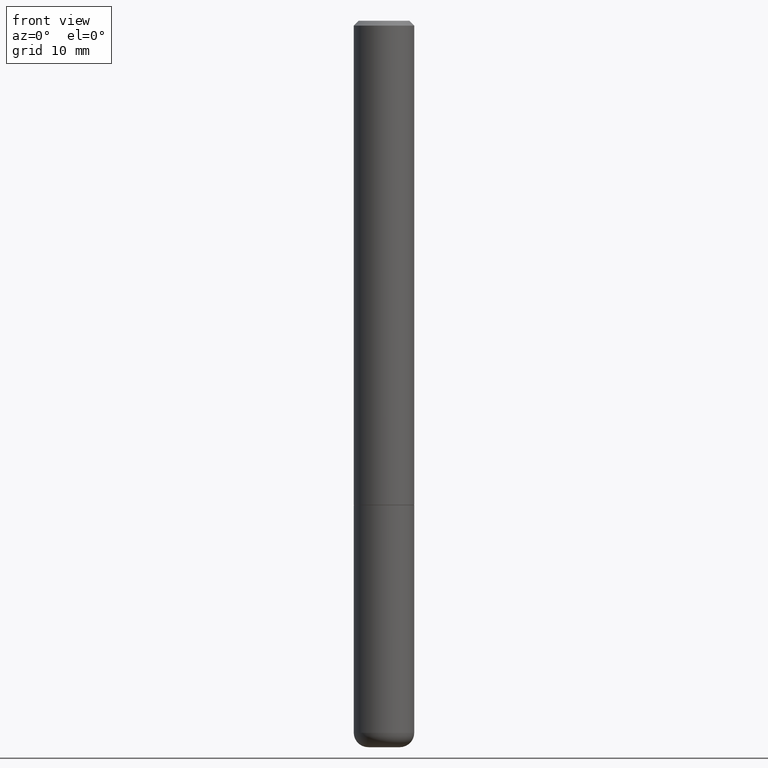
[diagram: clean part render]
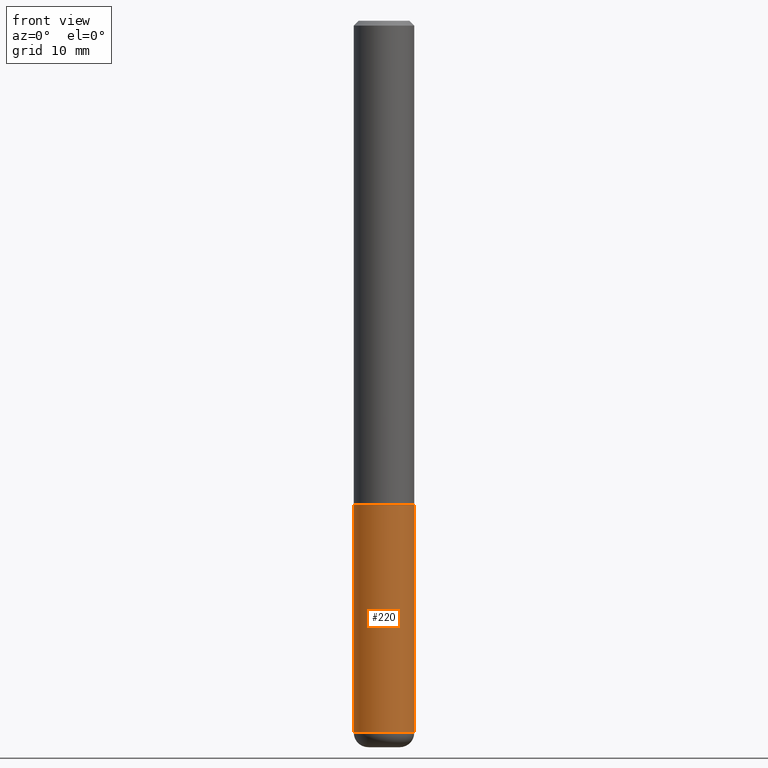
[diagram: same view with one face highlighted and labeled with its STEP entity id]
A machine part, front view. The second image highlights one B-rep face of the part: STEP entity #220.
In plain terms, the highlighted cylindrical surface (edge-blend (fillet) strip) has radius 3.175 mm, axis along (-0, 0, 1).
Its self-contained STEP definition (entity closure, byte-faithful):
#7 = DIRECTION ( 'NONE',  ( -2.445468806185136877E-29, 3.491481338843145188E-15, 1.000000000000000000 ) ) ;
#8 = CARTESIAN_POINT ( 'NONE',  ( -0.1250000000000000278, 8.881784197001254296E-16, -6.148668862818634329E-30 ) ) ;
#10 = VECTOR ( 'NONE', #284, 39.37007874015748143 ) ;
#15 = VERTEX_POINT ( 'NONE', #469 ) ;
#29 = AXIS2_PLACEMENT_3D ( 'NONE', #205, #359, #477 ) ;
#35 = CARTESIAN_POINT ( 'NONE',  ( 0.1250000000000000278, -1.113783344760428224E-14, -2.940002284616149097 ) ) ;
#39 = CIRCLE ( 'NONE', #387, 0.1250000000000000278 ) ;
#82 = AXIS2_PLACEMENT_3D ( 'NONE', #318, #366, #166 ) ;
#159 = LINE ( 'NONE', #244, #10 ) ;
#165 = CIRCLE ( 'NONE', #29, 0.1250000000000000278 ) ;
#166 = DIRECTION ( 'NONE',  ( 1.000000000000000000, -6.982962677686267499E-15, 4.876176775795935793E-29 ) ) ;
#171 = FACE_OUTER_BOUND ( 'NONE', #448, .T. ) ;
#178 = DIRECTION ( 'NONE',  ( 1.000000000000000000, -6.982962677686269077E-15, 0.000000000000000000 ) ) ;
#205 = CARTESIAN_POINT ( 'NONE',  ( 7.189683877141828880E-29, -1.026496311289350047E-14, -2.940002284616149097 ) ) ;
#214 = VERTEX_POINT ( 'NONE', #249 ) ;
#220 = ADVANCED_FACE ( 'NONE', ( #171 ), #481, .T. ) ;
#222 = CARTESIAN_POINT ( 'NONE',  ( -0.1250000000000000278, -7.735784475589770982E-15, -2.940002284616149097 ) ) ;
#231 = LINE ( 'NONE', #8, #470 ) ;
#244 = CARTESIAN_POINT ( 'NONE',  ( 0.1250000000000000278, -8.728703347107836346E-16, 6.095220969744921142E-30 ) ) ;
#249 = CARTESIAN_POINT ( 'NONE',  ( 0.1250000000000000278, -7.855833012397075293E-15, -2.000000000000000444 ) ) ;
#257 = EDGE_CURVE ( 'NONE', #370, #214, #159, .T. ) ;
#260 = EDGE_CURVE ( 'NONE', #408, #370, #165, .T. ) ;
#263 = ORIENTED_EDGE ( 'NONE', *, *, #433, .F. ) ;
#284 = DIRECTION ( 'NONE',  ( -2.445468806185136877E-29, 3.491481338843145188E-15, 1.000000000000000000 ) ) ;
#318 = CARTESIAN_POINT ( 'NONE',  ( 0.000000000000000000, 0.000000000000000000, 0.000000000000000000 ) ) ;
#359 = DIRECTION ( 'NONE',  ( -2.445468806185136597E-29, 3.491481338843145583E-15, 1.000000000000000000 ) ) ;
#366 = DIRECTION ( 'NONE',  ( -2.445468806185136597E-29, 3.491481338843145583E-15, 1.000000000000000000 ) ) ;
#370 = VERTEX_POINT ( 'NONE', #35 ) ;
#387 = AXIS2_PLACEMENT_3D ( 'NONE', #484, #414, #178 ) ;
#408 = VERTEX_POINT ( 'NONE', #222 ) ;
#414 = DIRECTION ( 'NONE',  ( -2.445468806185136597E-29, 3.491481338843145583E-15, 1.000000000000000000 ) ) ;
#433 = EDGE_CURVE ( 'NONE', #15, #214, #39, .T. ) ;
#436 = ORIENTED_EDGE ( 'NONE', *, *, #257, .T. ) ;
#448 = EDGE_LOOP ( 'NONE', ( #485, #466, #436, #263 ) ) ;
#466 = ORIENTED_EDGE ( 'NONE', *, *, #260, .T. ) ;
#469 = CARTESIAN_POINT ( 'NONE',  ( -0.1250000000000000278, -7.735784475589770982E-15, -2.000000000000000444 ) ) ;
#470 = VECTOR ( 'NONE', #7, 39.37007874015748143 ) ;
#477 = DIRECTION ( 'NONE',  ( 1.000000000000000000, -6.982962677686261189E-15, 0.000000000000000000 ) ) ;
#481 = CYLINDRICAL_SURFACE ( 'NONE', #82, 0.1250000000000000278 ) ;
#484 = CARTESIAN_POINT ( 'NONE',  ( 4.890937612370273754E-29, -6.982962677686291954E-15, -2.000000000000000444 ) ) ;
#485 = ORIENTED_EDGE ( 'NONE', *, *, #487, .F. ) ;
#487 = EDGE_CURVE ( 'NONE', #408, #15, #231, .T. ) ;